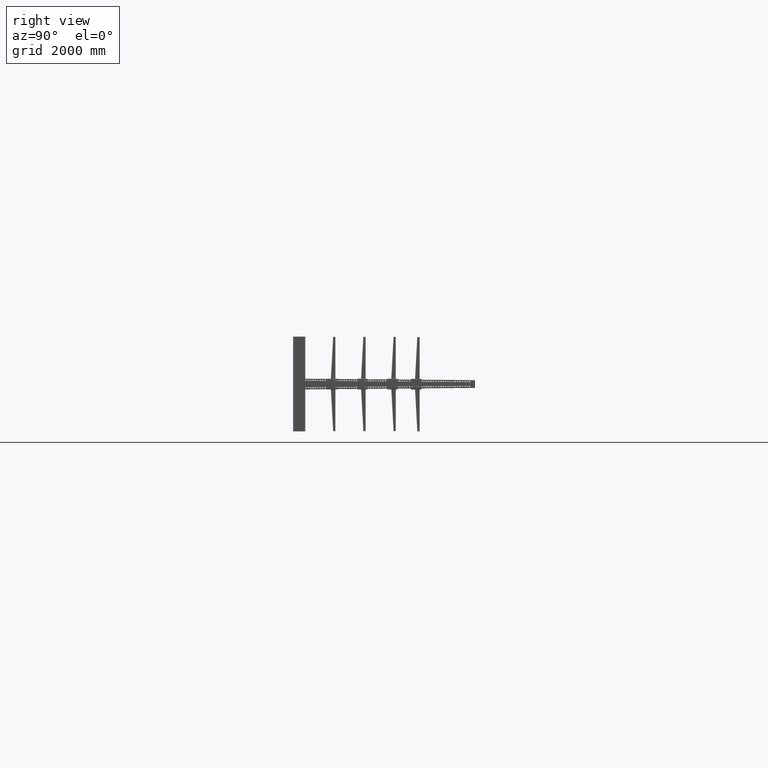
[diagram: clean part render]
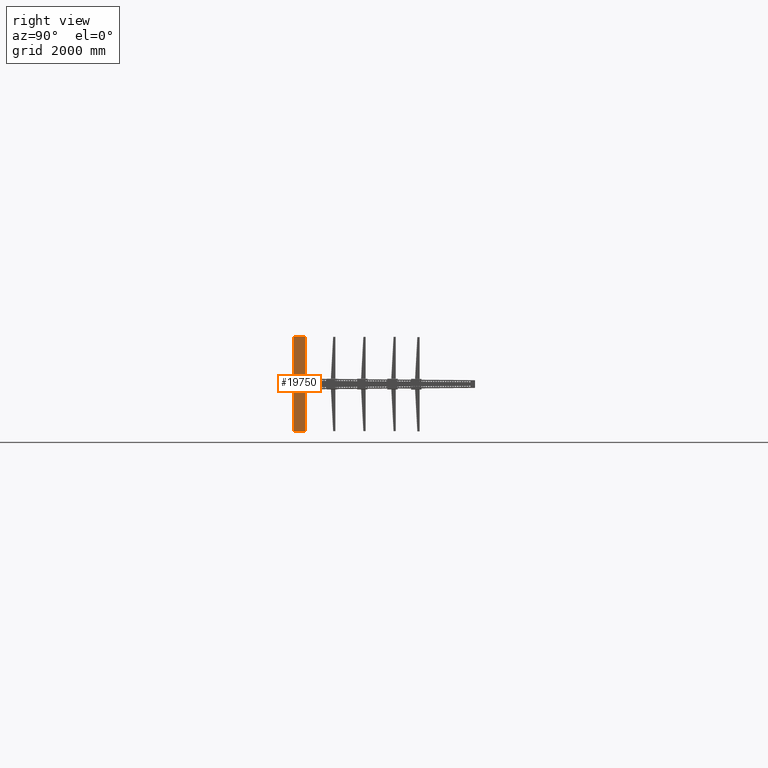
[diagram: same view with one face highlighted and labeled with its STEP entity id]
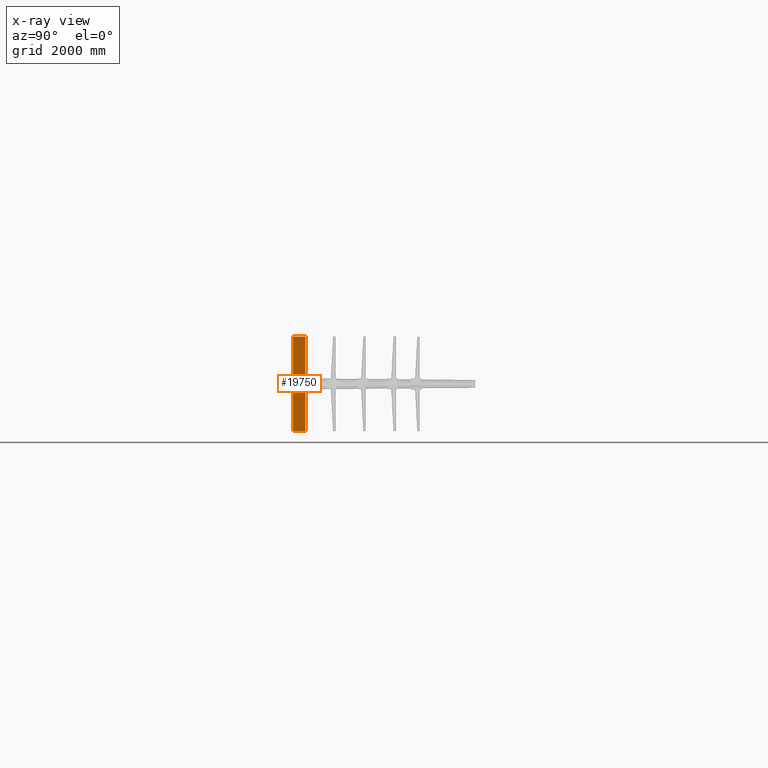
[diagram: x-ray of the same camera — body ghosted, the highlighted face saturated]
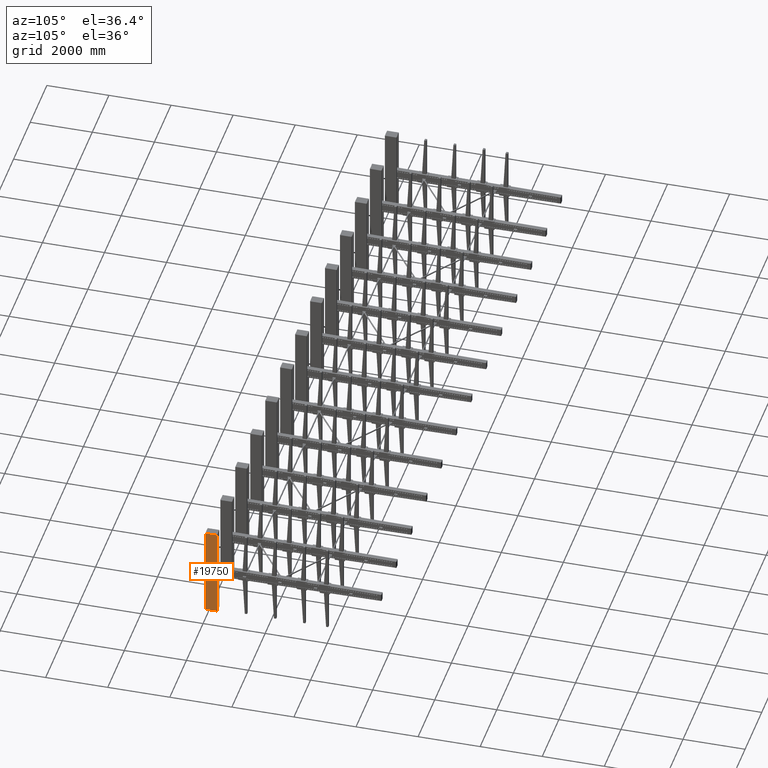
[diagram: same view with one face highlighted and labeled with its STEP entity id]
A machine part, right view. The second image highlights one B-rep face of the part: STEP entity #19750.
The next image is the same camera in x-ray: the body ghosted, the highlighted face saturated — about 0% of this face is hidden behind the body in this view.
A second angle (auxiliary view) of the same face is appended — the face is thin or edge-on in the first view.
In plain terms, the highlighted planar face has unit normal (-1, 0, 0).
Its self-contained STEP definition (entity closure, byte-faithful):
#346 = CARTESIAN_POINT ( 'NONE',  ( -137.4999999999999716, 375.0000000000000000, -1465.000000000000000 ) ) ;
#904 = CARTESIAN_POINT ( 'NONE',  ( -137.5000000000000000, -7.334207499148531789E-14, 1465.000000000000000 ) ) ;
#1649 = CARTESIAN_POINT ( 'NONE',  ( -137.4999999999999716, 375.0000000000000000, 1465.000000000000000 ) ) ;
#2913 = VERTEX_POINT ( 'NONE', #1649 ) ;
#3223 = CARTESIAN_POINT ( 'NONE',  ( -137.5000000000000000, -7.334207499148531789E-14, 1465.000000000000000 ) ) ;
#3235 = VECTOR ( 'NONE', #18346, 1000.000000000000000 ) ;
#3615 = CARTESIAN_POINT ( 'NONE',  ( -137.5000000000000000, -7.334207499148531789E-14, -1465.000000000000000 ) ) ;
#4418 = CARTESIAN_POINT ( 'NONE',  ( -137.4999999999999716, 375.0000000000000000, 1465.000000000000000 ) ) ;
#6821 = VERTEX_POINT ( 'NONE', #30462 ) ;
#7095 = ORIENTED_EDGE ( 'NONE', *, *, #19765, .F. ) ;
#9201 = LINE ( 'NONE', #4418, #11198 ) ;
#9465 = ORIENTED_EDGE ( 'NONE', *, *, #27393, .T. ) ;
#10355 = DIRECTION ( 'NONE',  ( -0.000000000000000000, -0.000000000000000000, -1.000000000000000000 ) ) ;
#10883 = EDGE_LOOP ( 'NONE', ( #20687, #7095, #11072, #9465 ) ) ;
#11072 = ORIENTED_EDGE ( 'NONE', *, *, #13489, .F. ) ;
#11198 = VECTOR ( 'NONE', #16515, 1000.000000000000000 ) ;
#11517 = AXIS2_PLACEMENT_3D ( 'NONE', #3223, #15170, #12671 ) ;
#12671 = DIRECTION ( 'NONE',  ( 7.401486830834376525E-17, 1.000000000000000000, 0.000000000000000000 ) ) ;
#12838 = VERTEX_POINT ( 'NONE', #13461 ) ;
#13461 = CARTESIAN_POINT ( 'NONE',  ( -137.5000000000000000, -7.334207499148531789E-14, 1465.000000000000000 ) ) ;
#13489 = EDGE_CURVE ( 'NONE', #2913, #12838, #29034, .T. ) ;
#13504 = VECTOR ( 'NONE', #10355, 1000.000000000000000 ) ;
#15170 = DIRECTION ( 'NONE',  ( 1.000000000000000000, -7.401486830834376525E-17, 0.000000000000000000 ) ) ;
#15311 = VERTEX_POINT ( 'NONE', #346 ) ;
#16515 = DIRECTION ( 'NONE',  ( -0.000000000000000000, -0.000000000000000000, -1.000000000000000000 ) ) ;
#17049 = FACE_OUTER_BOUND ( 'NONE', #10883, .T. ) ;
#18346 = DIRECTION ( 'NONE',  ( -7.401486830834376525E-17, -1.000000000000000000, -0.000000000000000000 ) ) ;
#19452 = VECTOR ( 'NONE', #23672, 1000.000000000000000 ) ;
#19750 = ADVANCED_FACE ( 'NONE', ( #17049 ), #24469, .F. ) ;
#19765 = EDGE_CURVE ( 'NONE', #12838, #6821, #22149, .T. ) ;
#20687 = ORIENTED_EDGE ( 'NONE', *, *, #25687, .T. ) ;
#22149 = LINE ( 'NONE', #904, #13504 ) ;
#23672 = DIRECTION ( 'NONE',  ( -7.401486830834376525E-17, -1.000000000000000000, -0.000000000000000000 ) ) ;
#24469 = PLANE ( 'NONE',  #11517 ) ;
#24861 = LINE ( 'NONE', #3615, #3235 ) ;
#25687 = EDGE_CURVE ( 'NONE', #15311, #6821, #24861, .T. ) ;
#26711 = CARTESIAN_POINT ( 'NONE',  ( -137.5000000000000000, -7.334207499148531789E-14, 1465.000000000000000 ) ) ;
#27393 = EDGE_CURVE ( 'NONE', #2913, #15311, #9201, .T. ) ;
#29034 = LINE ( 'NONE', #26711, #19452 ) ;
#30462 = CARTESIAN_POINT ( 'NONE',  ( -137.5000000000000000, -7.334207499148531789E-14, -1465.000000000000000 ) ) ;